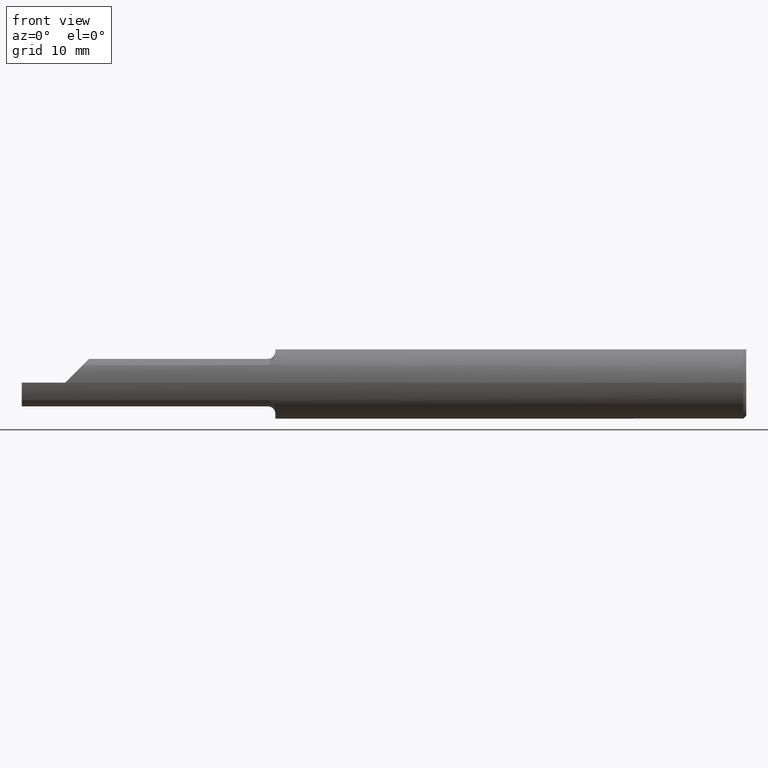
[diagram: clean part render]
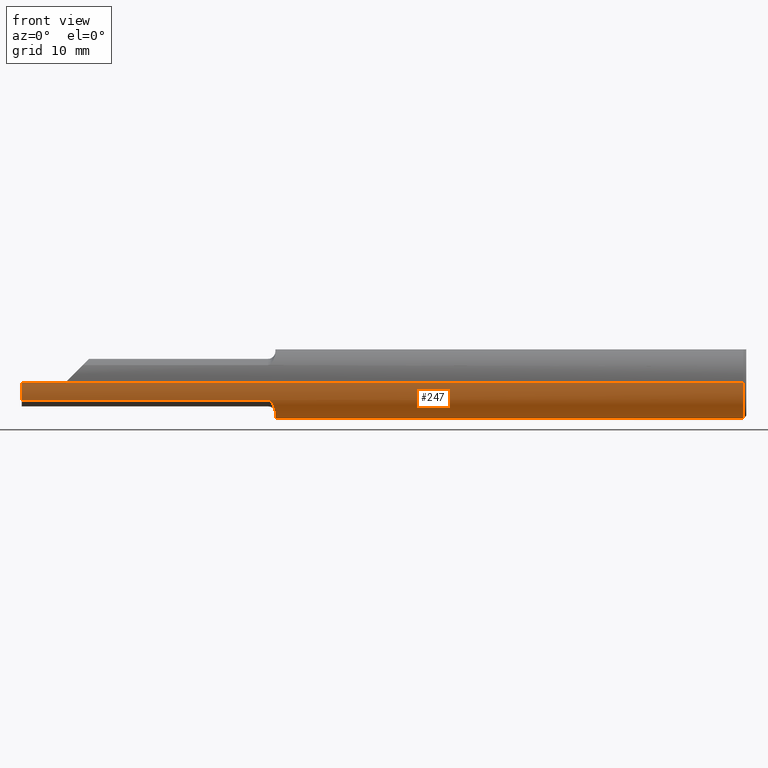
[diagram: same view with one face highlighted and labeled with its STEP entity id]
A machine part, front view. The second image highlights one B-rep face of the part: STEP entity #247.
In plain terms, the highlighted cylindrical surface (edge-blend (fillet) strip) has radius 3.1712 mm, axis along (1, 0, -0).
Its self-contained STEP definition (entity closure, byte-faithful):
#46 = LINE ( 'NONE', #440, #786 ) ;
#52 = CYLINDRICAL_SURFACE ( 'NONE', #773, 0.1248500000000000720 ) ;
#60 = CARTESIAN_POINT ( 'NONE',  ( -1.639871114992984769, -0.1060941439956720328, -0.06585051326918209269 ) ) ;
#81 = ORIENTED_EDGE ( 'NONE', *, *, #484, .T. ) ;
#93 = DIRECTION ( 'NONE',  ( 1.000000000000000000, 1.224646799147352961E-16, -0.000000000000000000 ) ) ;
#96 = DIRECTION ( 'NONE',  ( 1.000000000000000000, 1.224646799147352961E-16, -0.000000000000000000 ) ) ;
#116 = AXIS2_PLACEMENT_3D ( 'NONE', #232, #96, #485 ) ;
#123 = CARTESIAN_POINT ( 'NONE',  ( -2.044384618943233534, -0.1092232590529246816, -0.06047976671464370957 ) ) ;
#134 = CARTESIAN_POINT ( 'NONE',  ( -2.500000000000000000, -0.1092232590529249175, -0.06047976671464343895 ) ) ;
#136 = CARTESIAN_POINT ( 'NONE',  ( -1.650000000000000133, -0.1092232590529247510, -0.06047976671464379977 ) ) ;
#140 = FACE_OUTER_BOUND ( 'NONE', #652, .T. ) ;
#186 = VECTOR ( 'NONE', #650, 39.37007874015748143 ) ;
#203 = EDGE_CURVE ( 'NONE', #271, #508, #491, .T. ) ;
#204 = CARTESIAN_POINT ( 'NONE',  ( -1.646893101175457508, -0.1092232590529244596, -0.06047976671464402182 ) ) ;
#209 = CARTESIAN_POINT ( 'NONE',  ( -1.633707043473818565, -0.1002470790730144862, -0.07460645910525566527 ) ) ;
#214 = VECTOR ( 'NONE', #623, 39.37007874015748143 ) ;
#229 = EDGE_CURVE ( 'NONE', #784, #317, #701, .T. ) ;
#232 = CARTESIAN_POINT ( 'NONE',  ( -2.500000000000000000, -6.123233995736767268E-17, 0.000000000000000000 ) ) ;
#247 = ADVANCED_FACE ( 'NONE', ( #140 ), #52, .T. ) ;
#256 = CARTESIAN_POINT ( 'NONE',  ( -0.009999999999999604691, -0.1248499999999998361, 1.528971528735471346E-17 ) ) ;
#265 = CARTESIAN_POINT ( 'NONE',  ( -0.009999999999999620304, 2.437047130303233156E-16, 0.000000000000000000 ) ) ;
#271 = VERTEX_POINT ( 'NONE', #136 ) ;
#272 = DIRECTION ( 'NONE',  ( 0.000000000000000000, 1.000000000000000000, 0.000000000000000000 ) ) ;
#295 = ORIENTED_EDGE ( 'NONE', *, *, #203, .T. ) ;
#312 = ORIENTED_EDGE ( 'NONE', *, *, #229, .T. ) ;
#317 = VERTEX_POINT ( 'NONE', #256 ) ;
#334 = ORIENTED_EDGE ( 'NONE', *, *, #702, .T. ) ;
#335 = DIRECTION ( 'NONE',  ( 1.000000000000000000, 1.224646799147352961E-16, -0.000000000000000000 ) ) ;
#339 = CARTESIAN_POINT ( 'NONE',  ( -1.644143490399504470, -0.1083244193956729023, -0.06211342568704036893 ) ) ;
#382 = VECTOR ( 'NONE', #93, 39.37007874015748143 ) ;
#420 = CARTESIAN_POINT ( 'NONE',  ( -1.625000000000000222, -0.06535139275660113711, -0.1063800637556606699 ) ) ;
#440 = CARTESIAN_POINT ( 'NONE',  ( -2.500000000000000000, -0.1248500000000001414, 1.528971528735471346E-17 ) ) ;
#444 = CARTESIAN_POINT ( 'NONE',  ( -1.625000000000000222, 4.592425496802568672E-17, 0.000000000000000000 ) ) ;
#450 = AXIS2_PLACEMENT_3D ( 'NONE', #444, #456, #501 ) ;
#456 = DIRECTION ( 'NONE',  ( 1.000000000000000000, 1.301231752219315598E-17, 0.000000000000000000 ) ) ;
#470 = DIRECTION ( 'NONE',  ( -1.000000000000000000, -1.224646799147313518E-16, 0.000000000000000000 ) ) ;
#474 = CARTESIAN_POINT ( 'NONE',  ( -1.625408339284841741, -0.07550530484968213940, -0.09961131850253887587 ) ) ;
#477 = CARTESIAN_POINT ( 'NONE',  ( -1.627023439373395997, -0.08470251846186137301, -0.09191816578063177756 ) ) ;
#480 = CIRCLE ( 'NONE', #116, 0.1248500000000000720 ) ;
#482 = CARTESIAN_POINT ( 'NONE',  ( -2.500000000000000000, 0.1248500000000000026, 0.000000000000000000 ) ) ;
#484 = EDGE_CURVE ( 'NONE', #516, #813, #480, .T. ) ;
#485 = DIRECTION ( 'NONE',  ( 0.000000000000000000, 1.000000000000000000, 0.000000000000000000 ) ) ;
#491 = B_SPLINE_CURVE_WITH_KNOTS ( 'NONE', 3,
 ( #810, #204, #339, #60, #866, #209, #857, #597, #477, #474, #862, #803 ),
 .UNSPECIFIED., .F., .F.,
 ( 4, 2, 2, 2, 2, 4 ),
 ( 1.963893730137612966E-07, 0.0002326901895045305538, 0.0004651839896360473537, 0.0009301715898990810076, 0.001395159190162114553, 0.001860146790425148099 ),
 .UNSPECIFIED. ) ;
#498 = CARTESIAN_POINT ( 'NONE',  ( -2.500000000000000000, -0.1248500000000001414, 8.875653457662609881E-19 ) ) ;
#501 = DIRECTION ( 'NONE',  ( 0.000000000000000000, -1.000000000000000000, 0.000000000000000000 ) ) ;
#508 = VERTEX_POINT ( 'NONE', #420 ) ;
#516 = VERTEX_POINT ( 'NONE', #827 ) ;
#544 = ORIENTED_EDGE ( 'NONE', *, *, #637, .T. ) ;
#558 = ORIENTED_EDGE ( 'NONE', *, *, #749, .F. ) ;
#561 = CARTESIAN_POINT ( 'NONE',  ( -2.350000000000000089, -0.1248500000000000998, 0.000000000000000000 ) ) ;
#572 = LINE ( 'NONE', #123, #186 ) ;
#581 = ORIENTED_EDGE ( 'NONE', *, *, #591, .T. ) ;
#591 = EDGE_CURVE ( 'NONE', #605, #784, #693, .T. ) ;
#593 = EDGE_CURVE ( 'NONE', #516, #610, #830, .T. ) ;
#597 = CARTESIAN_POINT ( 'NONE',  ( -1.628216217036631663, -0.08893970397190090194, -0.08781254252923881287 ) ) ;
#605 = VERTEX_POINT ( 'NONE', #816 ) ;
#610 = VERTEX_POINT ( 'NONE', #561 ) ;
#623 = DIRECTION ( 'NONE',  ( 1.000000000000000000, 1.224646799147352961E-16, -0.000000000000000000 ) ) ;
#637 = EDGE_CURVE ( 'NONE', #508, #605, #829, .T. ) ;
#650 = DIRECTION ( 'NONE',  ( 1.000000000000000000, 1.301231752219315598E-17, 0.000000000000000000 ) ) ;
#652 = EDGE_LOOP ( 'NONE', ( #558, #705, #81, #334, #295, #544, #581, #312 ) ) ;
#671 = DIRECTION ( 'NONE',  ( -1.196619440556782523E-16, 1.000000000000000000, 0.000000000000000000 ) ) ;
#693 = LINE ( 'NONE', #482, #382 ) ;
#701 = CIRCLE ( 'NONE', #815, 0.1248500000000000720 ) ;
#702 = EDGE_CURVE ( 'NONE', #813, #271, #572, .T. ) ;
#705 = ORIENTED_EDGE ( 'NONE', *, *, #593, .F. ) ;
#707 = DIRECTION ( 'NONE',  ( 1.000000000000000000, 1.224646799147352961E-16, -0.000000000000000000 ) ) ;
#749 = EDGE_CURVE ( 'NONE', #610, #317, #46, .T. ) ;
#773 = AXIS2_PLACEMENT_3D ( 'NONE', #796, #335, #272 ) ;
#784 = VERTEX_POINT ( 'NONE', #844 ) ;
#786 = VECTOR ( 'NONE', #707, 39.37007874015748143 ) ;
#796 = CARTESIAN_POINT ( 'NONE',  ( -2.500000000000000000, -6.123233995736767268E-17, 0.000000000000000000 ) ) ;
#803 = CARTESIAN_POINT ( 'NONE',  ( -1.625000000000000222, -0.06535139275660113711, -0.1063800637556606699 ) ) ;
#810 = CARTESIAN_POINT ( 'NONE',  ( -1.650000000000000133, -0.1092232590529247510, -0.06047976671464379977 ) ) ;
#813 = VERTEX_POINT ( 'NONE', #134 ) ;
#815 = AXIS2_PLACEMENT_3D ( 'NONE', #265, #470, #671 ) ;
#816 = CARTESIAN_POINT ( 'NONE',  ( -1.625000000000000222, 0.1248500000000001275, 0.000000000000000000 ) ) ;
#827 = CARTESIAN_POINT ( 'NONE',  ( -2.500000000000000000, -0.1248500000000001414, 8.875653457662611807E-19 ) ) ;
#829 = CIRCLE ( 'NONE', #450, 0.1248500000000000720 ) ;
#830 = LINE ( 'NONE', #498, #214 ) ;
#844 = CARTESIAN_POINT ( 'NONE',  ( -0.009999999999999635916, 0.1248500000000003218, 0.000000000000000000 ) ) ;
#857 = CARTESIAN_POINT ( 'NONE',  ( -1.631574539397595558, -0.09671433139066804019, -0.07916850176499981573 ) ) ;
#862 = CARTESIAN_POINT ( 'NONE',  ( -1.624999999999958256, -0.07054286491513220292, -0.1031908389706531481 ) ) ;
#866 = CARTESIAN_POINT ( 'NONE',  ( -1.638158879394857381, -0.1047178258150699010, -0.06803468955092802084 ) ) ;